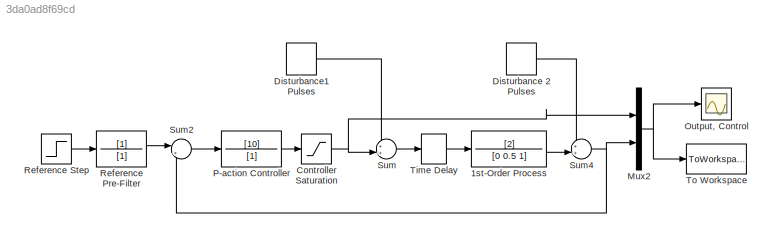
MODEL slx_3da0ad8f69cd
KIND model
CONFIG AbsTol = auto
CONFIG EnableMultiTasking = on
CONFIG FixedStep = .001
CONFIG MaxStep = .002
CONFIG MinStep = auto
CONFIG RelTol = 1e-3
CONFIG SampleTimeConstraint = Unconstrained
CONFIG Solver = ode3
CONFIG SolverName = ode3
CONFIG StartTime = 0.0
CONFIG StopTime = 0.5
BLOCK [TransferFcn] 1st-Order Process 
  Denominator = [0 0.5 1]
  Numerator = [2]
BLOCK [Saturate] Controller Saturation
  InputPortMap = u0
  LowerLimit = -10
  Ports = [1, 1]
  UpperLimit = 10
BLOCK [DiscretePulseGenerator] Disturbance 2 Pulses
  Amplitude = 0
  Period = 0.3
  PhaseDelay = 0.1
  Ports = [0, 1]
  PulseType = Time based
  PulseWidth = 50
BLOCK [DiscretePulseGenerator] Disturbance1 Pulses
  Amplitude = 0
  Period = 0.2
  PhaseDelay = 0.3
  Ports = [0, 1]
  PulseType = Time based
  PulseWidth = 50
BLOCK [Mux] Mux2
  DisplayOption = bar
  Inputs = 2
  Ports = [2, 1]
BLOCK [Scope] Output, Control
  NumInputPorts = 1
  Ports = [1]
  ScopeSpecificationString = Simulink.scopes.TimeScopeBlockCfg('CurrentConfiguration', extmgr.ConfigurationSet(extmgr.Configuration('Core','General UI',true),extmgr.Configuration('Core','Source UI',true),extmgr.Configuration('Sources','WiredSimulink',true,'DataLoggingSaveFormat','StructureWithTime','DataLoggingLimitDataPoints',true,'DataLoggingDecimation','1','DataLoggingDecimateData',true),extmgr.Configuration('Visuals','Tim...<+1713ch>
BLOCK [TransferFcn] P-action Controller
  Denominator = [1]
  Numerator = [10]
BLOCK [TransferFcn] Reference Pre-Filter
  Denominator = [1]
BLOCK [Step] Reference Step
  After = 5
  Before = 1
  SampleTime = 0
  Time = 0.6
BLOCK [Sum] Sum
  IconShape = round
  InputSameDT = off
  Inputs = ++|
  OutDataTypeStr = Inherit: Inherit via internal rule
  Ports = [2, 1]
  SaturateOnIntegerOverflow = off
BLOCK [Sum] Sum2
  IconShape = round
  InputSameDT = off
  Inputs = |+-
  OutDataTypeStr = Inherit: Inherit via internal rule
  Ports = [2, 1]
  SaturateOnIntegerOverflow = off
BLOCK [Sum] Sum4
  IconShape = round
  InputSameDT = off
  Inputs = ++|
  OutDataTypeStr = Inherit: Inherit via internal rule
  Ports = [2, 1]
  SaturateOnIntegerOverflow = off
BLOCK [TransportDelay] Time Delay
  DelayTime = 0.01
  Ports = [1, 1]
BLOCK [ToWorkspace] To Workspace
  FixptAsFi = on
  MaxDataPoints = inf
  Ports = [1]
  SampleTime = -1
  Save2DSignal = 3-D array (concatenate along third dimension)
  VariableName = outp1
LINE 1st-Order Process :1 -> Sum4:2
NET Controller Saturation:1 -> Mux2:1, Sum:2
LINE Disturbance 2 Pulses:1 -> Sum4:1
LINE Disturbance1 Pulses:1 -> Sum:1
NET Mux2:1 -> Output, Control:1, To Workspace:1
LINE P-action Controller:1 -> Controller Saturation:1
LINE Reference Pre-Filter:1 -> Sum2:1
LINE Reference Step:1 -> Reference Pre-Filter:1
LINE Sum2:1 -> P-action Controller:1
NET Sum4:1 -> Mux2:2, Sum2:2
LINE Sum:1 -> Time Delay:1
LINE Time Delay:1 -> 1st-Order Process :1
note: NET lines group one-source signal fan-out (src -> all destinations, sorted); 1:1 wires keep LINE
